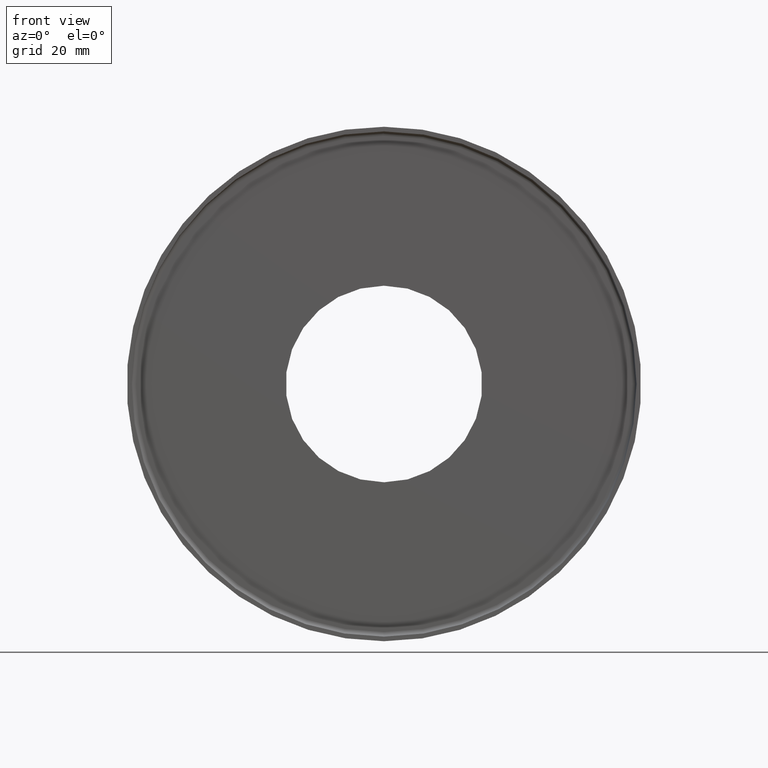
[diagram: clean part render]
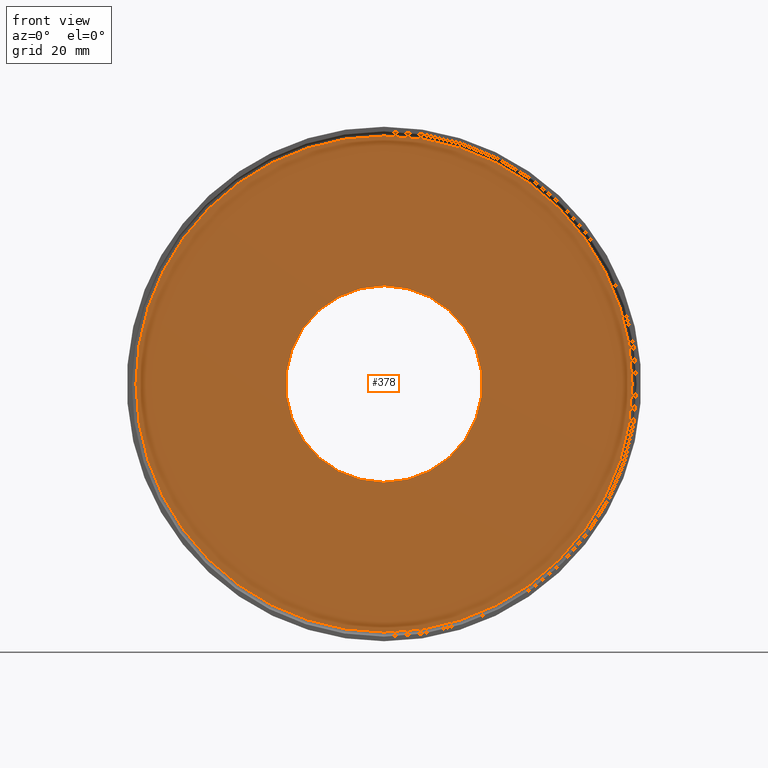
[diagram: same view with one face highlighted and labeled with its STEP entity id]
A machine part, front view. The second image highlights one B-rep face of the part: STEP entity #378.
In plain terms, the highlighted planar face has unit normal (0, 1, 0).
Its self-contained STEP definition (entity closure, byte-faithful):
#6 = DIRECTION ( 'NONE',  ( 0.0000000000000000000, 0.0000000000000000000, 1.000000000000000000 ) ) ;
#23 = CARTESIAN_POINT ( 'NONE',  ( 0.0000000000000000000, 17.39999999999999900, 54.00000000000000700 ) ) ;
#34 = EDGE_CURVE ( 'NONE', #379, #76, #163, .T. ) ;
#44 = DIRECTION ( 'NONE',  ( 0.0000000000000000000, 0.0000000000000000000, 1.000000000000000000 ) ) ;
#48 = AXIS2_PLACEMENT_3D ( 'NONE', #68, #101, #6 ) ;
#53 = EDGE_LOOP ( 'NONE', ( #186, #112 ) ) ;
#61 = ORIENTED_EDGE ( 'NONE', *, *, #159, .T. ) ;
#68 = CARTESIAN_POINT ( 'NONE',  ( 0.0000000000000000000, 17.39999999999999900, 0.0000000000000000000 ) ) ;
#70 = DIRECTION ( 'NONE',  ( 0.0000000000000000000, 1.000000000000000000, 0.0000000000000000000 ) ) ;
#76 = VERTEX_POINT ( 'NONE', #132 ) ;
#82 = CARTESIAN_POINT ( 'NONE',  ( 0.0000000000000000000, 17.39999999999999900, 0.0000000000000000000 ) ) ;
#83 = EDGE_LOOP ( 'NONE', ( #128, #61 ) ) ;
#101 = DIRECTION ( 'NONE',  ( 0.0000000000000000000, 1.000000000000000000, 0.0000000000000000000 ) ) ;
#106 = CARTESIAN_POINT ( 'NONE',  ( 0.0000000000000000000, 17.39999999999999900, 21.39999999999999900 ) ) ;
#112 = ORIENTED_EDGE ( 'NONE', *, *, #234, .F. ) ;
#122 = EDGE_CURVE ( 'NONE', #137, #285, #360, .T. ) ;
#128 = ORIENTED_EDGE ( 'NONE', *, *, #122, .T. ) ;
#132 = CARTESIAN_POINT ( 'NONE',  ( 6.674325055353075800E-015, 17.39999999999999900, -54.00000000000000700 ) ) ;
#137 = VERTEX_POINT ( 'NONE', #106 ) ;
#141 = CARTESIAN_POINT ( 'NONE',  ( 0.0000000000000000000, 17.39999999999999900, 0.0000000000000000000 ) ) ;
#159 = EDGE_CURVE ( 'NONE', #285, #137, #334, .T. ) ;
#162 = DIRECTION ( 'NONE',  ( 0.0000000000000000000, 1.000000000000000000, 0.0000000000000000000 ) ) ;
#163 = CIRCLE ( 'NONE', #48, 54.00000000000000700 ) ;
#174 = FACE_OUTER_BOUND ( 'NONE', #53, .T. ) ;
#186 = ORIENTED_EDGE ( 'NONE', *, *, #34, .F. ) ;
#189 = CARTESIAN_POINT ( 'NONE',  ( 0.0000000000000000000, 17.39999999999999900, 0.0000000000000000000 ) ) ;
#194 = CARTESIAN_POINT ( 'NONE',  ( 0.0000000000000000000, 17.39999999999999900, 0.0000000000000000000 ) ) ;
#203 = DIRECTION ( 'NONE',  ( 0.0000000000000000000, -0.0000000000000000000, 1.000000000000000000 ) ) ;
#228 = PLANE ( 'NONE',  #361 ) ;
#234 = EDGE_CURVE ( 'NONE', #76, #379, #278, .T. ) ;
#252 = AXIS2_PLACEMENT_3D ( 'NONE', #141, #162, #383 ) ;
#278 = CIRCLE ( 'NONE', #252, 54.00000000000000700 ) ;
#282 = AXIS2_PLACEMENT_3D ( 'NONE', #189, #70, #44 ) ;
#285 = VERTEX_POINT ( 'NONE', #396 ) ;
#286 = FACE_BOUND ( 'NONE', #83, .T. ) ;
#317 = DIRECTION ( 'NONE',  ( 0.0000000000000000000, 1.000000000000000000, 0.0000000000000000000 ) ) ;
#325 = AXIS2_PLACEMENT_3D ( 'NONE', #194, #317, #388 ) ;
#332 = DIRECTION ( 'NONE',  ( 0.0000000000000000000, 1.000000000000000000, 0.0000000000000000000 ) ) ;
#334 = CIRCLE ( 'NONE', #325, 21.39999999999999900 ) ;
#360 = CIRCLE ( 'NONE', #282, 21.39999999999999900 ) ;
#361 = AXIS2_PLACEMENT_3D ( 'NONE', #82, #332, #203 ) ;
#378 = ADVANCED_FACE ( 'NONE', ( #286, #174 ), #228, .F. ) ;
#379 = VERTEX_POINT ( 'NONE', #23 ) ;
#383 = DIRECTION ( 'NONE',  ( 0.0000000000000000000, 0.0000000000000000000, 1.000000000000000000 ) ) ;
#388 = DIRECTION ( 'NONE',  ( 0.0000000000000000000, 0.0000000000000000000, 1.000000000000000000 ) ) ;
#396 = CARTESIAN_POINT ( 'NONE',  ( 2.620744150175335900E-015, 17.39999999999999900, -21.39999999999999900 ) ) ;